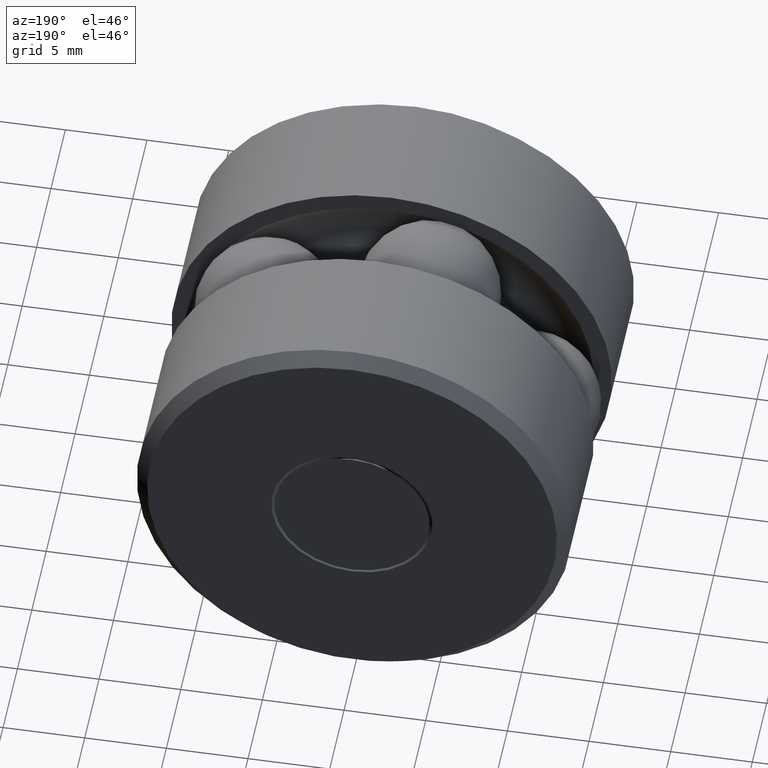
[diagram: clean part render]
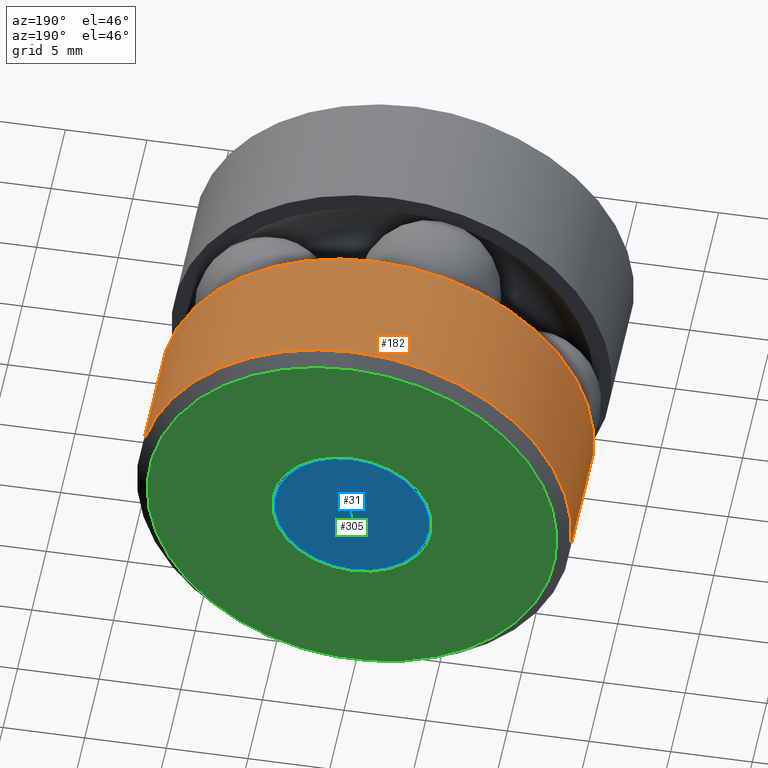
[diagram: same view with three faces highlighted in distinct colors, each labeled with its STEP entity id]
A machine part, auxiliary view with three faces highlighted in distinct colors.
Their STEP definitions:

[orange] entity #182 — the highlighted cylindrical surface (bore or boss wall) has radius 13.3159 mm, axis along (-0, 1, -0).
#20 = VERTEX_POINT ( 'NONE', #144 ) ;
#61 = CARTESIAN_POINT ( 'NONE',  ( 0.0000000000000000000, 0.5406999999999999600, 0.5242499999999999900 ) ) ;
#116 = EDGE_CURVE ( 'NONE', #486, #486, #306, .T. ) ;
#144 = CARTESIAN_POINT ( 'NONE',  ( 0.0000000000000000000, 0.8449999999999994200, 0.5242499999999999900 ) ) ;
#152 = AXIS2_PLACEMENT_3D ( 'NONE', #368, #365, #363 ) ;
#168 = CYLINDRICAL_SURFACE ( 'NONE', #216, 0.5242499999999999900 ) ;
#182 = ADVANCED_FACE ( 'NONE', ( #495, #523 ), #168, .T. ) ;
#199 = EDGE_CURVE ( 'NONE', #20, #20, #328, .T. ) ;
#216 = AXIS2_PLACEMENT_3D ( 'NONE', #332, #340, #335 ) ;
#218 = DIRECTION ( 'NONE',  ( 0.0000000000000000000, 0.0000000000000000000, 1.000000000000000000 ) ) ;
#219 = DIRECTION ( 'NONE',  ( -0.0000000000000000000, 1.000000000000000000, -0.0000000000000000000 ) ) ;
#221 = AXIS2_PLACEMENT_3D ( 'NONE', #223, #219, #218 ) ;
#223 = CARTESIAN_POINT ( 'NONE',  ( 0.0000000000000000000, 0.8449999999999994200, 0.0000000000000000000 ) ) ;
#269 = EDGE_LOOP ( 'NONE', ( #300 ) ) ;
#300 = ORIENTED_EDGE ( 'NONE', *, *, #116, .T. ) ;
#306 = CIRCLE ( 'NONE', #152, 0.5242499999999999900 ) ;
#328 = CIRCLE ( 'NONE', #221, 0.5242499999999999900 ) ;
#332 = CARTESIAN_POINT ( 'NONE',  ( 0.0000000000000000000, 0.0000000000000000000, 0.0000000000000000000 ) ) ;
#335 = DIRECTION ( 'NONE',  ( 0.0000000000000000000, 0.0000000000000000000, 1.000000000000000000 ) ) ;
#340 = DIRECTION ( 'NONE',  ( -0.0000000000000000000, 1.000000000000000000, -0.0000000000000000000 ) ) ;
#362 = EDGE_LOOP ( 'NONE', ( #393 ) ) ;
#363 = DIRECTION ( 'NONE',  ( 0.0000000000000000000, 0.0000000000000000000, 1.000000000000000000 ) ) ;
#365 = DIRECTION ( 'NONE',  ( -0.0000000000000000000, 1.000000000000000000, -0.0000000000000000000 ) ) ;
#368 = CARTESIAN_POINT ( 'NONE',  ( 0.0000000000000000000, 0.5406999999999999600, 0.0000000000000000000 ) ) ;
#393 = ORIENTED_EDGE ( 'NONE', *, *, #199, .F. ) ;
#486 = VERTEX_POINT ( 'NONE', #61 ) ;
#495 = FACE_OUTER_BOUND ( 'NONE', #269, .T. ) ;
#523 = FACE_OUTER_BOUND ( 'NONE', #362, .T. ) ;

[blue] entity #31 — the highlighted planar face has unit normal (-0, 1, 0).
#2 = VERTEX_POINT ( 'NONE', #296 ) ;
#31 = ADVANCED_FACE ( 'NONE', ( #426 ), #391, .T. ) ;
#50 = AXIS2_PLACEMENT_3D ( 'NONE', #59, #260, #392 ) ;
#59 = CARTESIAN_POINT ( 'NONE',  ( 0.0000000000000000000, 0.8750000000000000000, 0.0000000000000000000 ) ) ;
#146 = ORIENTED_EDGE ( 'NONE', *, *, #263, .T. ) ;
#151 = CIRCLE ( 'NONE', #50, 0.1873749999999990100 ) ;
#154 = DIRECTION ( 'NONE',  ( -0.0000000000000000000, 1.000000000000000000, 0.0000000000000000000 ) ) ;
#167 = CARTESIAN_POINT ( 'NONE',  ( 0.0000000000000000000, 0.8750000000000001100, 0.0000000000000000000 ) ) ;
#260 = DIRECTION ( 'NONE',  ( -0.0000000000000000000, 1.000000000000000000, -0.0000000000000000000 ) ) ;
#263 = EDGE_CURVE ( 'NONE', #2, #2, #151, .T. ) ;
#296 = CARTESIAN_POINT ( 'NONE',  ( 0.0000000000000000000, 0.8750000000000000000, 0.1873749999999990100 ) ) ;
#336 = AXIS2_PLACEMENT_3D ( 'NONE', #167, #154, #395 ) ;
#391 = PLANE ( 'NONE',  #336 ) ;
#392 = DIRECTION ( 'NONE',  ( 0.0000000000000000000, 0.0000000000000000000, 1.000000000000000000 ) ) ;
#395 = DIRECTION ( 'NONE',  ( 0.0000000000000000000, 0.0000000000000000000, 1.000000000000000000 ) ) ;
#426 = FACE_OUTER_BOUND ( 'NONE', #443, .T. ) ;
#443 = EDGE_LOOP ( 'NONE', ( #146 ) ) ;

[green] entity #305 — the highlighted planar face has unit normal (-0, 1, 0).
#16 = CARTESIAN_POINT ( 'NONE',  ( -0.1944460678118644900, 0.8750000000000000000, 0.0000000000000000000 ) ) ;
#18 = AXIS2_PLACEMENT_3D ( 'NONE', #123, #209, #214 ) ;
#30 = AXIS2_PLACEMENT_3D ( 'NONE', #16, #69, #65 ) ;
#45 = PLANE ( 'NONE',  #30 ) ;
#54 = CARTESIAN_POINT ( 'NONE',  ( 0.0000000000000000000, 0.8750000000000000000, 0.4942500000000001900 ) ) ;
#65 = DIRECTION ( 'NONE',  ( 0.0000000000000000000, 0.0000000000000000000, 1.000000000000000000 ) ) ;
#69 = DIRECTION ( 'NONE',  ( -0.0000000000000000000, 1.000000000000000000, 0.0000000000000000000 ) ) ;
#75 = AXIS2_PLACEMENT_3D ( 'NONE', #176, #174, #173 ) ;
#92 = CIRCLE ( 'NONE', #75, 0.4942500000000001900 ) ;
#101 = FACE_OUTER_BOUND ( 'NONE', #310, .T. ) ;
#123 = CARTESIAN_POINT ( 'NONE',  ( 0.0000000000000000000, 0.8750000000000000000, 0.0000000000000000000 ) ) ;
#158 = CARTESIAN_POINT ( 'NONE',  ( 0.0000000000000000000, 0.8750000000000000000, 0.1944460678118644900 ) ) ;
#173 = DIRECTION ( 'NONE',  ( 0.0000000000000000000, 0.0000000000000000000, 1.000000000000000000 ) ) ;
#174 = DIRECTION ( 'NONE',  ( -0.0000000000000000000, 1.000000000000000000, -0.0000000000000000000 ) ) ;
#176 = CARTESIAN_POINT ( 'NONE',  ( 0.0000000000000000000, 0.8750000000000000000, 0.0000000000000000000 ) ) ;
#178 = ORIENTED_EDGE ( 'NONE', *, *, #228, .T. ) ;
#203 = EDGE_LOOP ( 'NONE', ( #266 ) ) ;
#209 = DIRECTION ( 'NONE',  ( -0.0000000000000000000, 1.000000000000000000, -0.0000000000000000000 ) ) ;
#214 = DIRECTION ( 'NONE',  ( 0.0000000000000000000, 0.0000000000000000000, 1.000000000000000000 ) ) ;
#228 = EDGE_CURVE ( 'NONE', #373, #373, #92, .T. ) ;
#240 = FACE_BOUND ( 'NONE', #203, .T. ) ;
#266 = ORIENTED_EDGE ( 'NONE', *, *, #287, .F. ) ;
#287 = EDGE_CURVE ( 'NONE', #462, #462, #515, .T. ) ;
#305 = ADVANCED_FACE ( 'NONE', ( #101, #240 ), #45, .T. ) ;
#310 = EDGE_LOOP ( 'NONE', ( #178 ) ) ;
#373 = VERTEX_POINT ( 'NONE', #54 ) ;
#462 = VERTEX_POINT ( 'NONE', #158 ) ;
#515 = CIRCLE ( 'NONE', #18, 0.1944460678118644900 ) ;